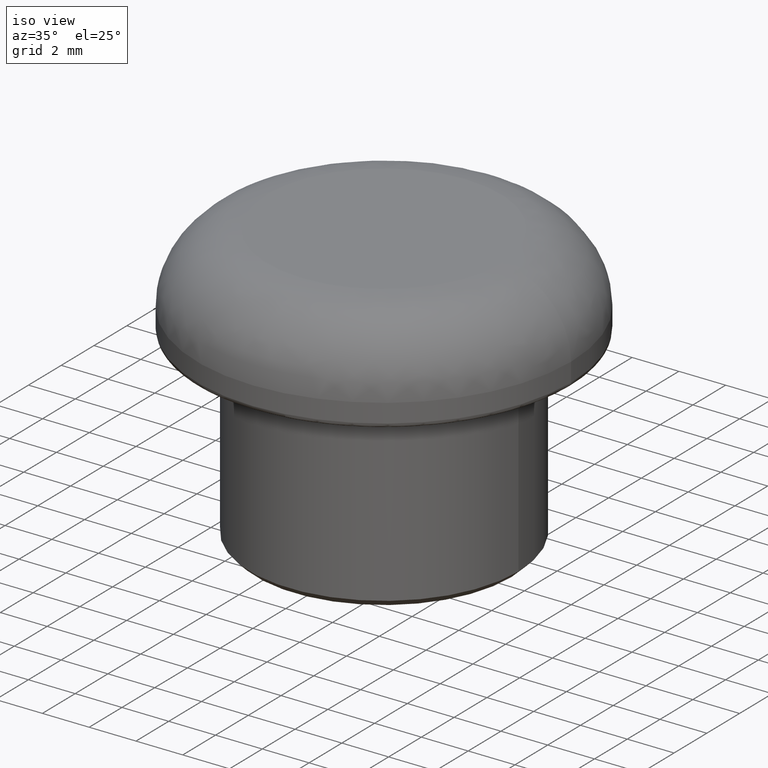
[diagram: clean part render]
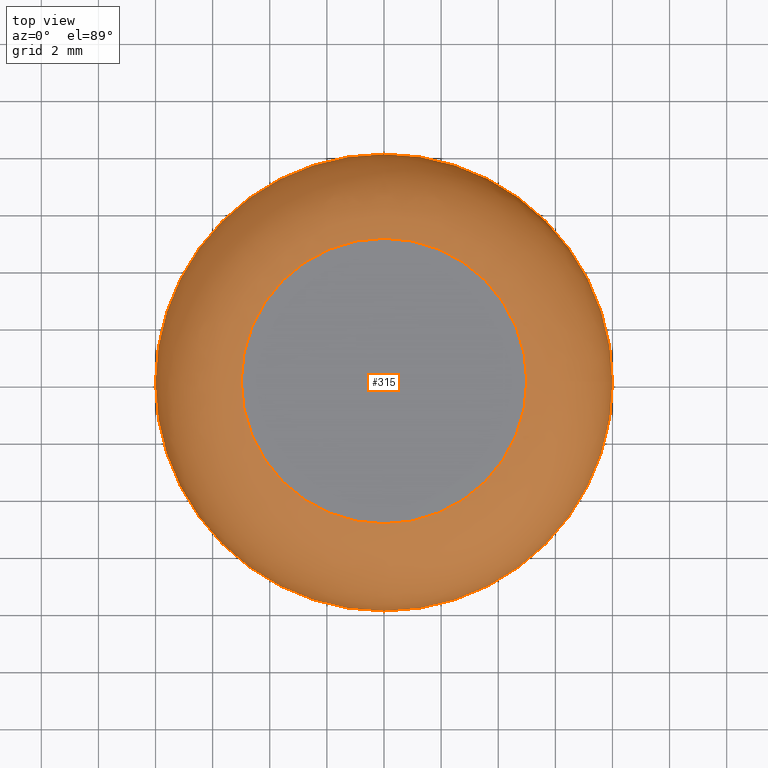
[diagram: tour spotlight — one face highlighted and labeled with its STEP entity id]
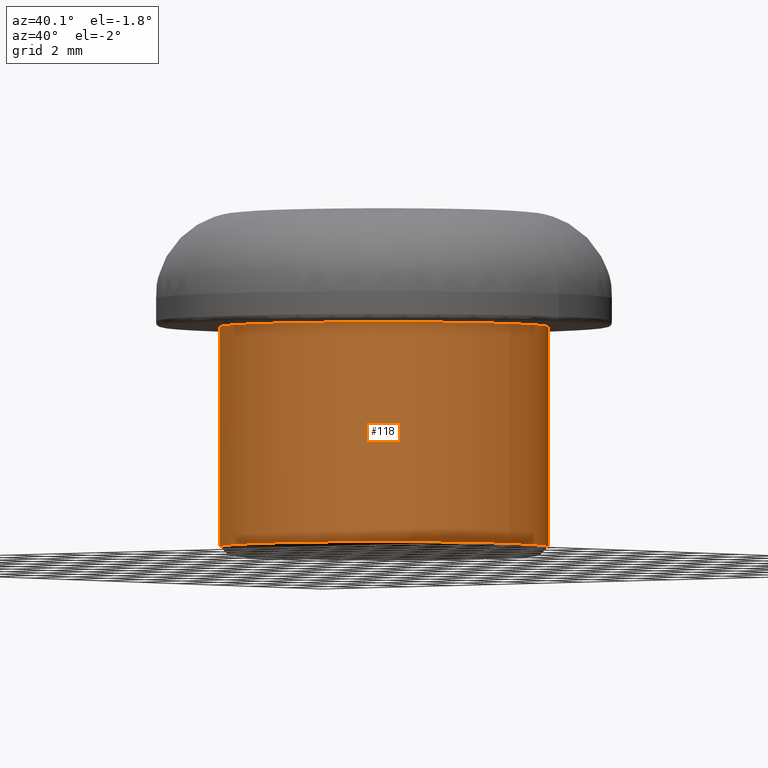
[diagram: tour spotlight — one face highlighted and labeled with its STEP entity id]
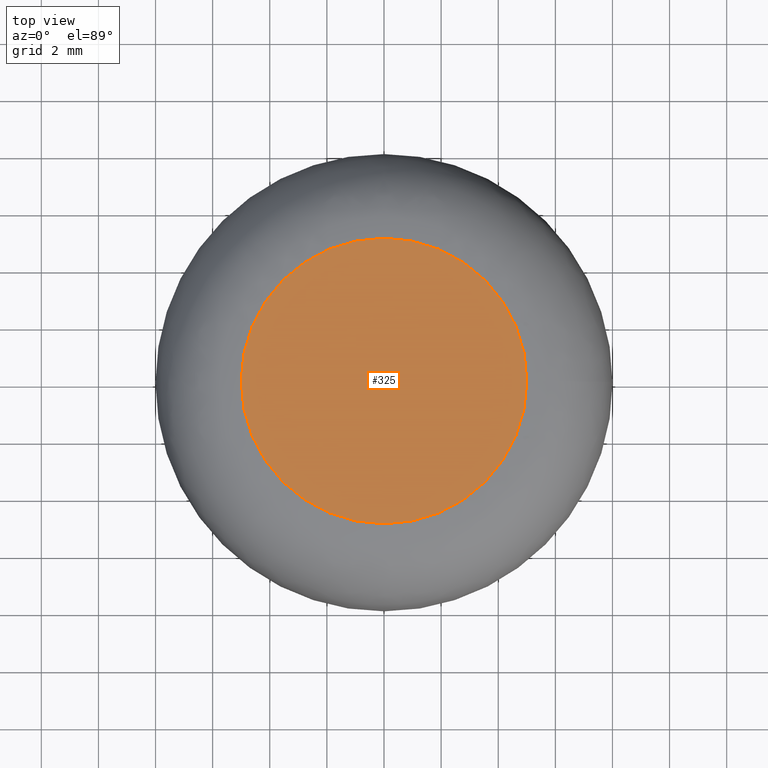
[diagram: tour spotlight — one face highlighted and labeled with its STEP entity id]
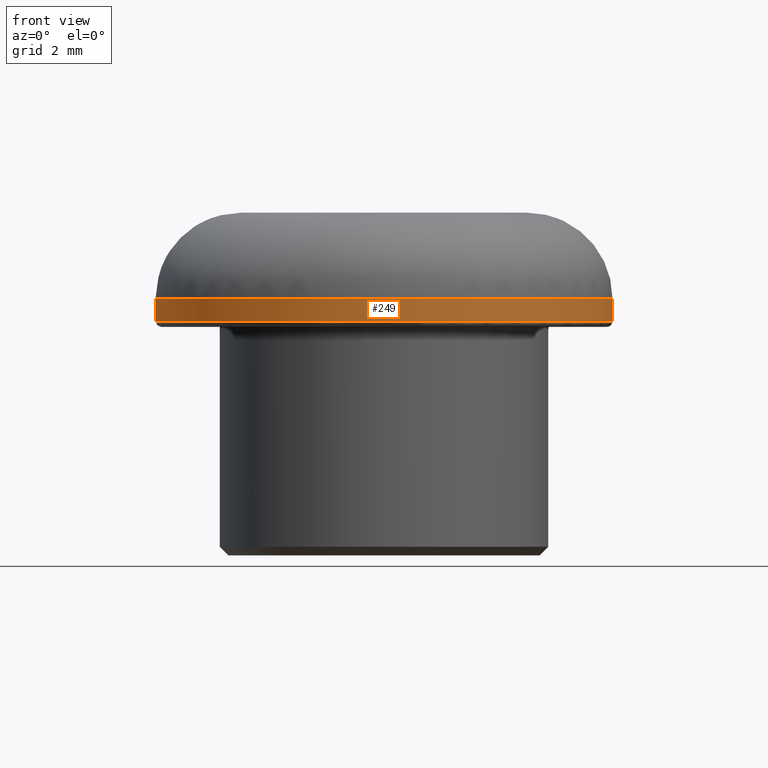
[diagram: tour spotlight — one face highlighted and labeled with its STEP entity id]
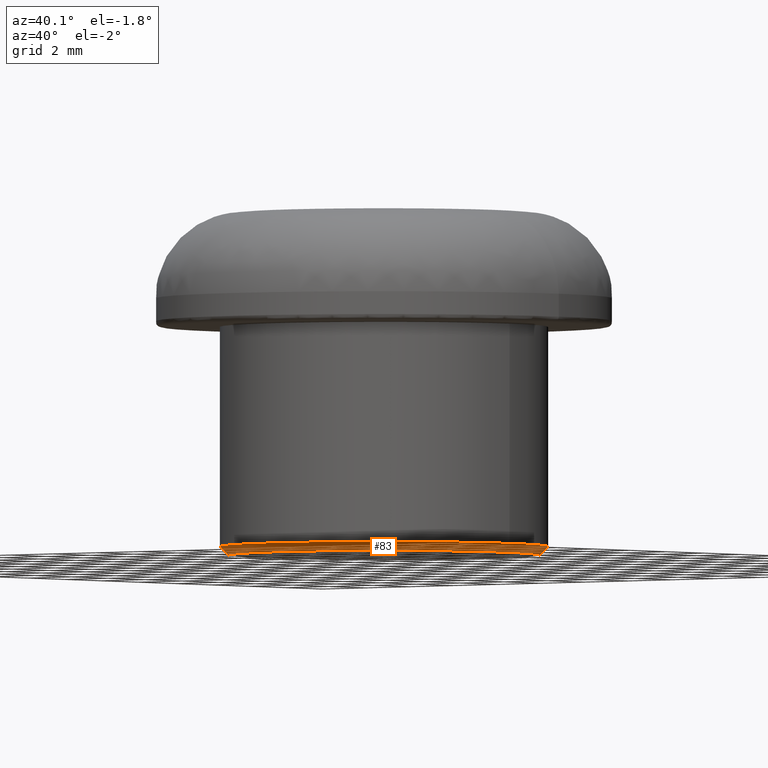
[diagram: tour spotlight — one face highlighted and labeled with its STEP entity id]
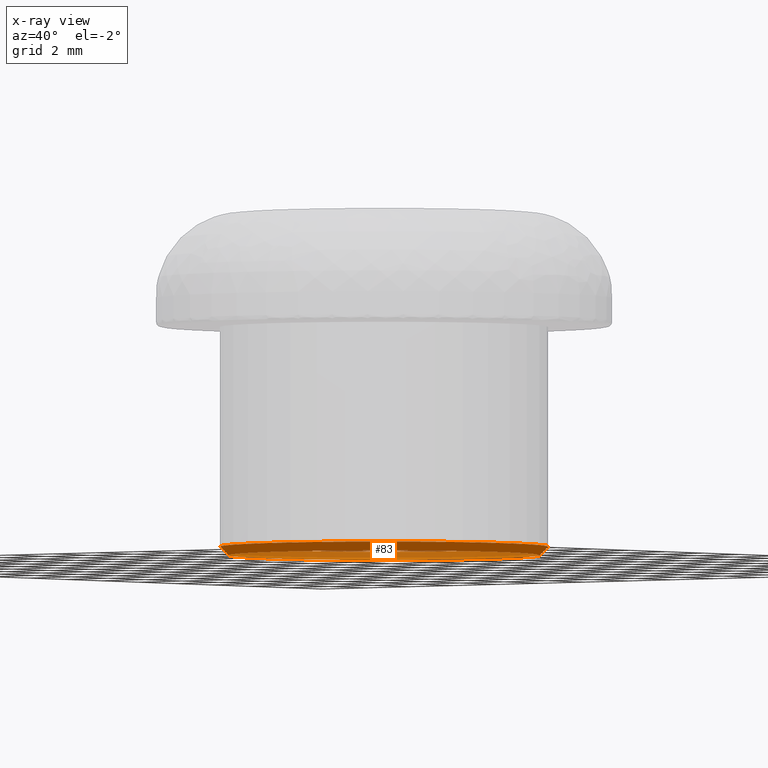
[diagram: x-ray of the same camera — body ghosted, this tour face saturated]
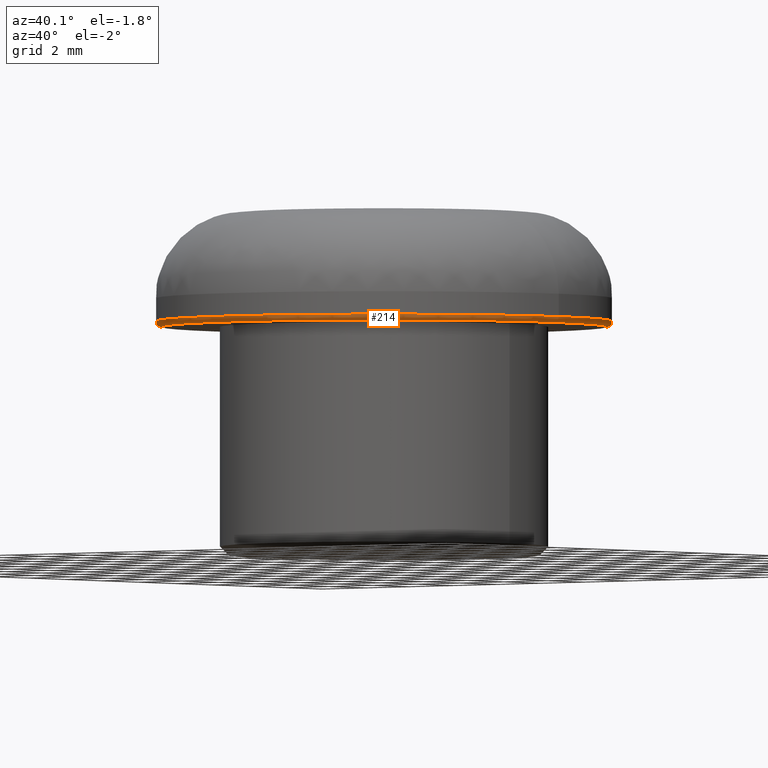
[diagram: tour spotlight — one face highlighted and labeled with its STEP entity id]
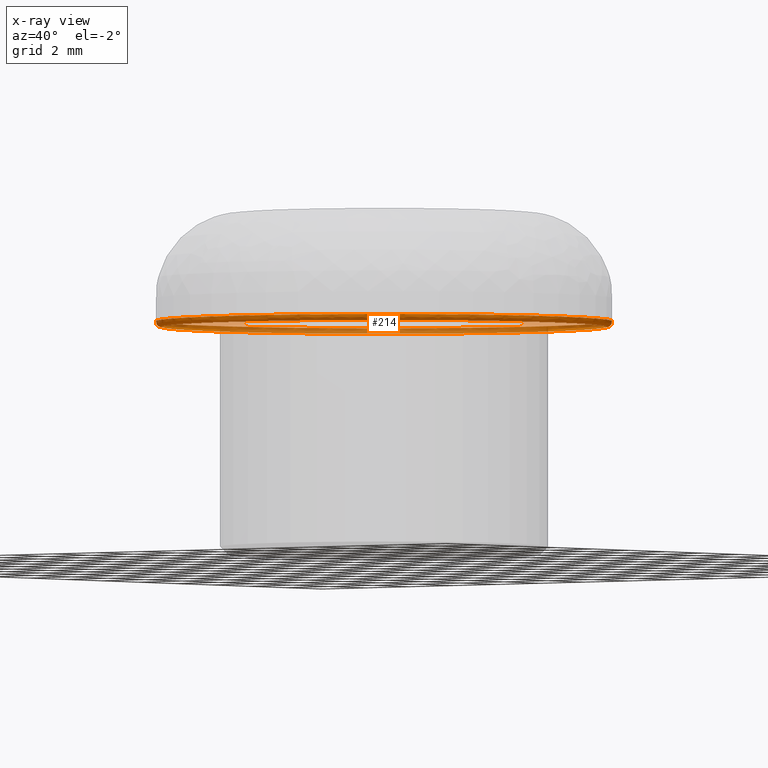
[diagram: x-ray of the same camera — body ghosted, this tour face saturated]
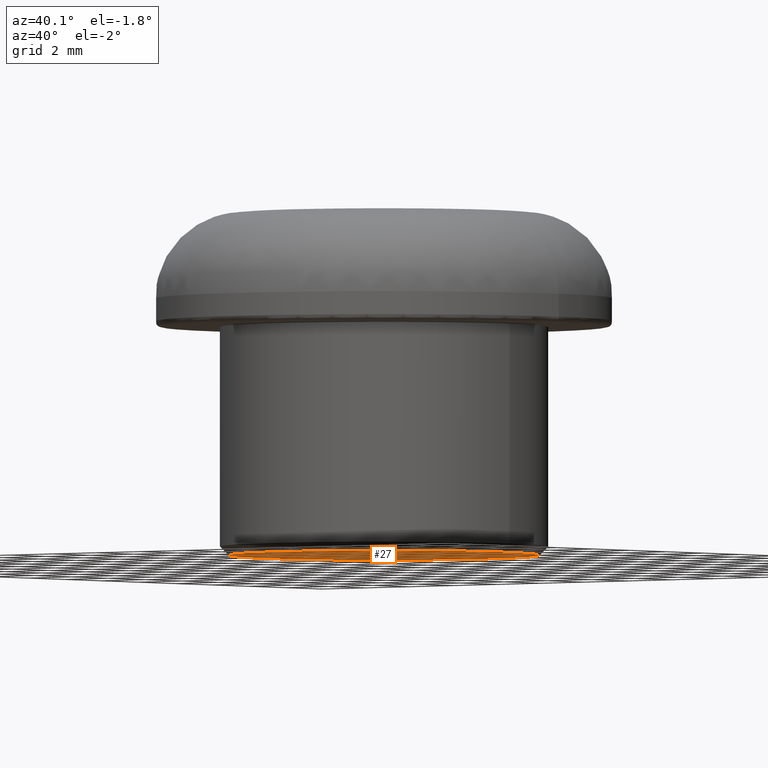
[diagram: tour spotlight — one face highlighted and labeled with its STEP entity id]
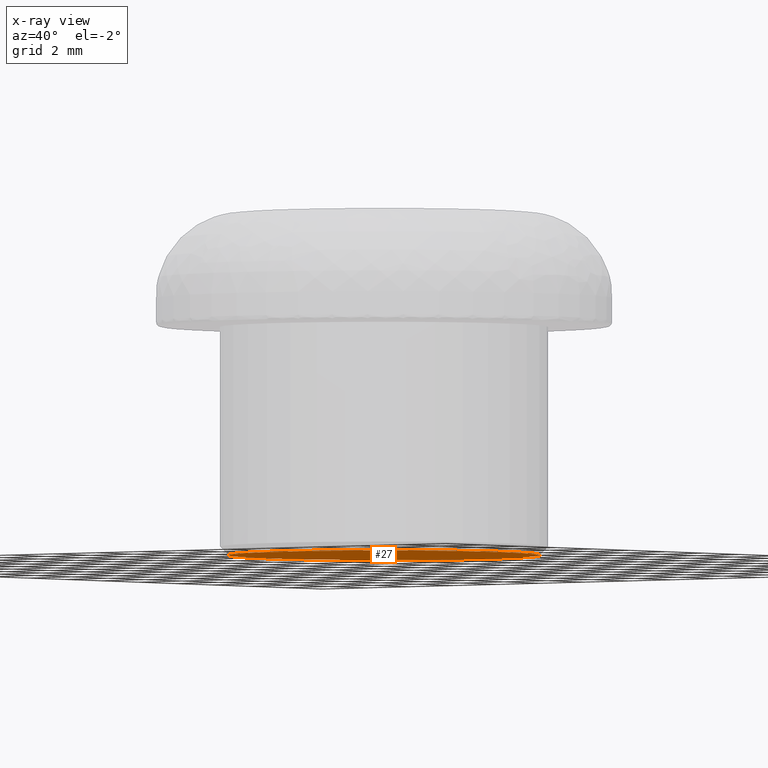
[diagram: x-ray of the same camera — body ghosted, this tour face saturated]
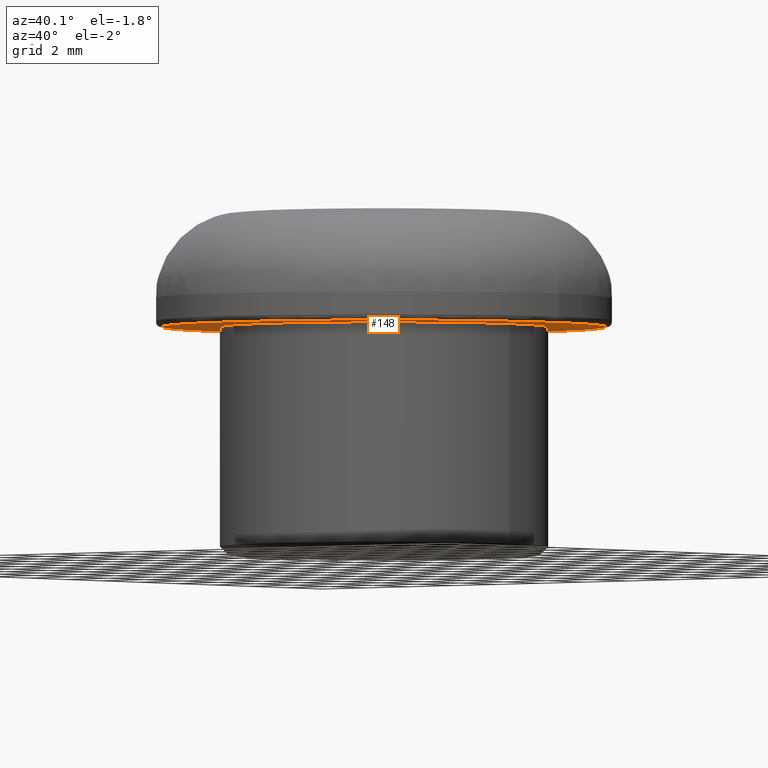
[diagram: tour spotlight — one face highlighted and labeled with its STEP entity id]
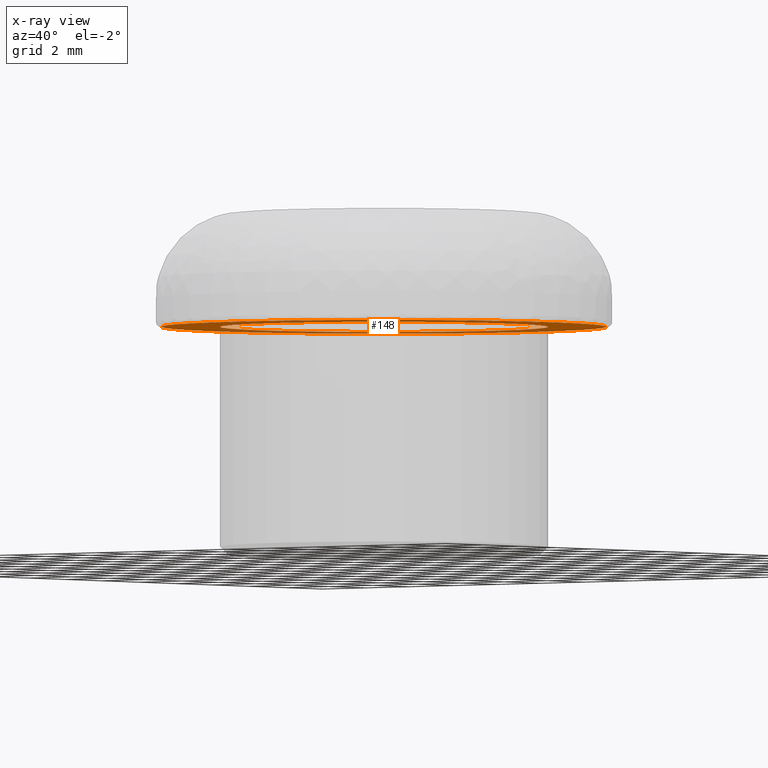
[diagram: x-ray of the same camera — body ghosted, this tour face saturated]
A machine part: a face-by-face anatomy tour. The part has 8 B-rep faces; the first image is the clean iso view, then the 8 largest visible faces are spotlighted one at a time (largest first), each with its STEP entity span.

Face 1 — top view, entity #315. In plain terms, the highlighted face is a freeform B-spline surface patch.
Definition (entity closure, byte-faithful):
#222=CARTESIAN_POINT('',(7.999999999968168,7.999999999968168,0.999999999995907));
#223=VERTEX_POINT('',#222);
#230=CARTESIAN_POINT('',(-7.999999999968168,7.999999999968168,0.999999999995907));
#231=VERTEX_POINT('',#230);
#232=CARTESIAN_POINT('',(0.0,7.999999999968168,0.999999999995907));
#233=DIRECTION('',(0.0,6.123234E-017,1.0));
#234=DIRECTION('',(1.0,0.0,0.0));
#235=AXIS2_PLACEMENT_3D('',#232,#233,#234);
#236=CIRCLE('',#235,7.999999999968168);
#237=EDGE_CURVE('',#231,#223,#236,.T.);
#239=CARTESIAN_POINT('',(0.0,7.999999999968168,0.999999999995907));
#240=DIRECTION('',(0.0,6.123234E-017,1.0));
#241=DIRECTION('',(1.0,0.0,0.0));
#242=AXIS2_PLACEMENT_3D('',#239,#240,#241);
#243=CIRCLE('',#242,7.999999999968168);
#244=EDGE_CURVE('',#223,#231,#243,.T.);
#250=CARTESIAN_POINT('',(7.999999999968168,7.999999999968168,0.999999999995907));
#251=CARTESIAN_POINT('',(7.999999999968168,15.999999999936335,0.999999999995907));
#252=CARTESIAN_POINT('',(-3.370874E-016,15.999999999936335,0.999999999995907));
#253=CARTESIAN_POINT('',(-7.999999999968168,15.999999999936335,0.999999999995907));
#254=CARTESIAN_POINT('',(-7.999999999968168,7.999999999968168,0.999999999995907));
#255=CARTESIAN_POINT('',(-7.999999999968168,0.0,0.999999999995908));
#256=CARTESIAN_POINT('',(3.370874E-016,0.0,0.999999999995908));
#257=CARTESIAN_POINT('',(7.999999999968168,0.0,0.999999999995908));
#258=CARTESIAN_POINT('',(7.999999999968168,7.999999999968168,0.999999999995907));
#259=CARTESIAN_POINT('',(7.999999999968168,7.999999999968168,3.999999999984084));
#260=CARTESIAN_POINT('',(7.999999999968168,15.999999999936335,3.999999999984083));
#261=CARTESIAN_POINT('',(-1.533903E-016,15.999999999936335,3.999999999984084));
#262=CARTESIAN_POINT('',(-7.999999999968168,15.999999999936335,3.999999999984083));
#263=CARTESIAN_POINT('',(-7.999999999968168,7.999999999968168,3.999999999984084));
#264=CARTESIAN_POINT('',(-7.999999999968168,0.0,3.999999999984084));
#265=CARTESIAN_POINT('',(1.533903E-016,0.0,3.999999999984084));
#266=CARTESIAN_POINT('',(7.999999999968168,0.0,3.999999999984084));
#267=CARTESIAN_POINT('',(7.999999999968168,7.999999999968168,3.999999999984084));
#268=CARTESIAN_POINT('',(4.999999999979992,7.999999999968168,3.999999999984084));
#269=CARTESIAN_POINT('',(4.999999999979992,12.999999999948157,3.999999999984084));
#270=CARTESIAN_POINT('',(-1.533903E-016,12.999999999948159,3.999999999984083));
#271=CARTESIAN_POINT('',(-4.999999999979992,12.999999999948157,3.999999999984084));
#272=CARTESIAN_POINT('',(-4.999999999979992,7.999999999968168,3.999999999984084));
#273=CARTESIAN_POINT('',(-4.999999999979992,2.999999999988176,3.999999999984084));
#274=CARTESIAN_POINT('',(1.533903E-016,2.999999999988176,3.999999999984084));
#275=CARTESIAN_POINT('',(4.999999999979992,2.999999999988176,3.999999999984084));
#276=CARTESIAN_POINT('',(4.999999999979992,7.999999999968168,3.999999999984084));
#284=(BOUNDED_SURFACE()B_SPLINE_SURFACE(2,2,((#250,#259,#268),(#251,#260,#269),(#252,#261,#270),(#253,#262,#271),(#254,#263,#272),(#255,#264,#273),(#256,#265,#274),(#257,#266,#275),(#258,#267,#276)),.UNSPECIFIED.,.T.,.F.,.U.)B_SPLINE_SURFACE_WITH_KNOTS((3,2,2,2,3),(3,3),(0.0,0.250000000000000,0.500000000000000,0.750000000000000,1.0),(0.0,1.0),.UNSPECIFIED.)GEOMETRIC_REPRESENTATION_ITEM()RATIONAL_B_SPLINE_SURFACE(((1.0,0.707106781186548,1.0),(0.707106781186548,0.500000000000000,0.707106781186548),(1.0,0.707106781186548,1.0),(0.707106781186548,0.500000000000000,0.707106781186548),(1.0,0.707106781186548,1.0),(0.707106781186548,0.500000000000000,0.707106781186548),(1.0,0.707106781186548,1.0),(0.707106781186548,0.500000000000000,0.707106781186548),(1.0,0.707106781186548,1.0)))REPRESENTATION_ITEM('')SURFACE());
#285=ORIENTED_EDGE('',*,*,#244,.T.);
#286=ORIENTED_EDGE('',*,*,#237,.T.);
#287=CARTESIAN_POINT('',(4.999999999979991,7.999999999968168,3.999999999984084));
#288=VERTEX_POINT('',#287);
#289=CARTESIAN_POINT('',(4.999999999979991,7.999999999968168,0.999999999995907));
#290=DIRECTION('',(0.0,-1.0,6.123234E-017));
#291=DIRECTION('',(1.0,0.0,0.0));
#292=AXIS2_PLACEMENT_3D('',#289,#290,#291);
#293=CIRCLE('',#292,2.999999999988177);
#294=EDGE_CURVE('',#223,#288,#293,.T.);
#295=ORIENTED_EDGE('',*,*,#294,.T.);
#296=CARTESIAN_POINT('',(-4.999999999979991,7.999999999968168,3.999999999984084));
#297=VERTEX_POINT('',#296);
#298=CARTESIAN_POINT('',(0.0,7.999999999968168,3.999999999984084));
#299=DIRECTION('',(0.0,6.123234E-017,1.0));
#300=DIRECTION('',(1.0,0.0,0.0));
#301=AXIS2_PLACEMENT_3D('',#298,#299,#300);
#302=CIRCLE('',#301,4.999999999979991);
#303=EDGE_CURVE('',#297,#288,#302,.T.);
#304=ORIENTED_EDGE('',*,*,#303,.F.);
#305=CARTESIAN_POINT('',(0.0,7.999999999968168,3.999999999984084));
#306=DIRECTION('',(0.0,6.123234E-017,1.0));
#307=DIRECTION('',(1.0,0.0,0.0));
#308=AXIS2_PLACEMENT_3D('',#305,#306,#307);
#309=CIRCLE('',#308,4.999999999979991);
#310=EDGE_CURVE('',#288,#297,#309,.T.);
#311=ORIENTED_EDGE('',*,*,#310,.F.);
#312=ORIENTED_EDGE('',*,*,#294,.F.);
#313=EDGE_LOOP('',(#285,#286,#295,#304,#311,#312));
#314=FACE_OUTER_BOUND('',#313,.T.);
#315=ADVANCED_FACE('',(#314),#284,.T.);

Face 2 — auxiliary view, entity #118. In plain terms, the highlighted cylindrical surface (bore or boss wall) has radius 5.75 mm, axis along (0, 0, 1).
Definition (entity closure, byte-faithful):
#56=CARTESIAN_POINT('',(5.750000000000000,7.999999999968167,-7.699999999969350));
#57=VERTEX_POINT('',#56);
#64=CARTESIAN_POINT('',(-5.750000000000000,7.999999999968167,-7.699999999969350));
#65=VERTEX_POINT('',#64);
#66=CARTESIAN_POINT('',(0.0,7.999999999968167,-7.699999999969350));
#67=DIRECTION('',(0.0,6.123234E-017,1.0));
#68=DIRECTION('',(1.0,0.0,0.0));
#69=AXIS2_PLACEMENT_3D('',#66,#67,#68);
#70=CIRCLE('',#69,5.750000000000000);
#71=EDGE_CURVE('',#65,#57,#70,.T.);
#73=CARTESIAN_POINT('',(0.0,7.999999999968167,-7.699999999969350));
#74=DIRECTION('',(0.0,6.123234E-017,1.0));
#75=DIRECTION('',(1.0,0.0,0.0));
#76=AXIS2_PLACEMENT_3D('',#73,#74,#75);
#77=CIRCLE('',#76,5.750000000000000);
#78=EDGE_CURVE('',#57,#65,#77,.T.);
#84=CARTESIAN_POINT('',(0.0,7.999999999968167,-7.699999999969350));
#85=DIRECTION('',(0.0,6.123234E-017,1.0));
#86=DIRECTION('',(1.0,0.0,0.0));
#87=AXIS2_PLACEMENT_3D('',#84,#85,#86);
#88=CYLINDRICAL_SURFACE('',#87,5.750000000000000);
#89=ORIENTED_EDGE('',*,*,#78,.T.);
#90=ORIENTED_EDGE('',*,*,#71,.T.);
#91=CARTESIAN_POINT('',(5.750000000000000,7.999999999968168,0.0));
#92=VERTEX_POINT('',#91);
#93=CARTESIAN_POINT('',(5.750000000000000,7.999999999968167,-7.699999999969350));
#94=DIRECTION('',(0.0,0.0,1.0));
#95=VECTOR('',#94,7.699999999969350);
#96=LINE('',#93,#95);
#97=EDGE_CURVE('',#57,#92,#96,.T.);
#98=ORIENTED_EDGE('',*,*,#97,.T.);
#99=CARTESIAN_POINT('',(-5.750000000000000,7.999999999968168,0.0));
#100=VERTEX_POINT('',#99);
#101=CARTESIAN_POINT('',(0.0,7.999999999968168,0.0));
#102=DIRECTION('',(0.0,6.123234E-017,1.0));
#103=DIRECTION('',(1.0,0.0,0.0));
#104=AXIS2_PLACEMENT_3D('',#101,#102,#103);
#105=CIRCLE('',#104,5.750000000000000);
#106=EDGE_CURVE('',#100,#92,#105,.T.);
#107=ORIENTED_EDGE('',*,*,#106,.F.);
#108=CARTESIAN_POINT('',(0.0,7.999999999968168,0.0));
#109=DIRECTION('',(0.0,6.123234E-017,1.0));
#110=DIRECTION('',(1.0,0.0,0.0));
#111=AXIS2_PLACEMENT_3D('',#108,#109,#110);
#112=CIRCLE('',#111,5.750000000000000);
#113=EDGE_CURVE('',#92,#100,#112,.T.);
#114=ORIENTED_EDGE('',*,*,#113,.F.);
#115=ORIENTED_EDGE('',*,*,#97,.F.);
#116=EDGE_LOOP('',(#89,#90,#98,#107,#114,#115));
#117=FACE_OUTER_BOUND('',#116,.T.);
#118=ADVANCED_FACE('',(#117),#88,.T.);

Face 3 — top view, entity #325. In plain terms, the highlighted planar face has unit normal (0, 0, 1).
Definition (entity closure, byte-faithful):
#287=CARTESIAN_POINT('',(4.999999999979991,7.999999999968168,3.999999999984084));
#288=VERTEX_POINT('',#287);
#296=CARTESIAN_POINT('',(-4.999999999979991,7.999999999968168,3.999999999984084));
#297=VERTEX_POINT('',#296);
#298=CARTESIAN_POINT('',(0.0,7.999999999968168,3.999999999984084));
#299=DIRECTION('',(0.0,6.123234E-017,1.0));
#300=DIRECTION('',(1.0,0.0,0.0));
#301=AXIS2_PLACEMENT_3D('',#298,#299,#300);
#302=CIRCLE('',#301,4.999999999979991);
#303=EDGE_CURVE('',#297,#288,#302,.T.);
#305=CARTESIAN_POINT('',(0.0,7.999999999968168,3.999999999984084));
#306=DIRECTION('',(0.0,6.123234E-017,1.0));
#307=DIRECTION('',(1.0,0.0,0.0));
#308=AXIS2_PLACEMENT_3D('',#305,#306,#307);
#309=CIRCLE('',#308,4.999999999979991);
#310=EDGE_CURVE('',#288,#297,#309,.T.);
#316=CARTESIAN_POINT('',(9.999999999959982,-1.999999999991815,3.999999999984084));
#317=DIRECTION('',(0.0,0.0,1.0));
#318=DIRECTION('',(0.0,1.0,0.0));
#319=AXIS2_PLACEMENT_3D('',#316,#317,#318);
#320=PLANE('',#319);
#321=ORIENTED_EDGE('',*,*,#310,.T.);
#322=ORIENTED_EDGE('',*,*,#303,.T.);
#323=EDGE_LOOP('',(#321,#322));
#324=FACE_OUTER_BOUND('',#323,.T.);
#325=ADVANCED_FACE('',(#324),#320,.T.);

Face 4 — front view, entity #249. In plain terms, the highlighted cylindrical surface (bore or boss wall) has radius 8 mm, axis along (0, 0, 1).
Definition (entity closure, byte-faithful):
#186=CARTESIAN_POINT('',(7.999999999968168,7.999999999968168,0.199999999998909));
#187=VERTEX_POINT('',#186);
#195=CARTESIAN_POINT('',(-7.999999999968168,7.999999999968168,0.199999999998909));
#196=VERTEX_POINT('',#195);
#197=CARTESIAN_POINT('',(0.0,7.999999999968168,0.199999999998909));
#198=DIRECTION('',(0.0,6.123234E-017,1.0));
#199=DIRECTION('',(1.0,0.0,0.0));
#200=AXIS2_PLACEMENT_3D('',#197,#198,#199);
#201=CIRCLE('',#200,7.999999999968168);
#202=EDGE_CURVE('',#196,#187,#201,.T.);
#204=CARTESIAN_POINT('',(0.0,7.999999999968168,0.199999999998909));
#205=DIRECTION('',(0.0,6.123234E-017,1.0));
#206=DIRECTION('',(1.0,0.0,0.0));
#207=AXIS2_PLACEMENT_3D('',#204,#205,#206);
#208=CIRCLE('',#207,7.999999999968168);
#209=EDGE_CURVE('',#187,#196,#208,.T.);
#215=CARTESIAN_POINT('',(0.0,7.999999999968168,0.199999999998909));
#216=DIRECTION('',(0.0,6.123234E-017,1.0));
#217=DIRECTION('',(1.0,0.0,0.0));
#218=AXIS2_PLACEMENT_3D('',#215,#216,#217);
#219=CYLINDRICAL_SURFACE('',#218,7.999999999968168);
#220=ORIENTED_EDGE('',*,*,#209,.T.);
#221=ORIENTED_EDGE('',*,*,#202,.T.);
#222=CARTESIAN_POINT('',(7.999999999968168,7.999999999968168,0.999999999995907));
#223=VERTEX_POINT('',#222);
#224=CARTESIAN_POINT('',(7.999999999968168,7.999999999968168,0.199999999998909));
#225=DIRECTION('',(0.0,0.0,1.0));
#226=VECTOR('',#225,0.799999999996999);
#227=LINE('',#224,#226);
#228=EDGE_CURVE('',#187,#223,#227,.T.);
#229=ORIENTED_EDGE('',*,*,#228,.T.);
#230=CARTESIAN_POINT('',(-7.999999999968168,7.999999999968168,0.999999999995907));
#231=VERTEX_POINT('',#230);
#232=CARTESIAN_POINT('',(0.0,7.999999999968168,0.999999999995907));
#233=DIRECTION('',(0.0,6.123234E-017,1.0));
#234=DIRECTION('',(1.0,0.0,0.0));
#235=AXIS2_PLACEMENT_3D('',#232,#233,#234);
#236=CIRCLE('',#235,7.999999999968168);
#237=EDGE_CURVE('',#231,#223,#236,.T.);
#238=ORIENTED_EDGE('',*,*,#237,.F.);
#239=CARTESIAN_POINT('',(0.0,7.999999999968168,0.999999999995907));
#240=DIRECTION('',(0.0,6.123234E-017,1.0));
#241=DIRECTION('',(1.0,0.0,0.0));
#242=AXIS2_PLACEMENT_3D('',#239,#240,#241);
#243=CIRCLE('',#242,7.999999999968168);
#244=EDGE_CURVE('',#223,#231,#243,.T.);
#245=ORIENTED_EDGE('',*,*,#244,.F.);
#246=ORIENTED_EDGE('',*,*,#228,.F.);
#247=EDGE_LOOP('',(#220,#221,#229,#238,#245,#246));
#248=FACE_OUTER_BOUND('',#247,.T.);
#249=ADVANCED_FACE('',(#248),#219,.T.);

Face 5 — auxiliary view, entity #83. An x-ray twin of the same camera follows (body ghosted, this face saturated) — the face is partly hidden behind the body. In plain terms, the highlighted face is a freeform B-spline surface patch.
Definition (entity closure, byte-faithful):
#7=CARTESIAN_POINT('',(-5.450000000001637,7.999999999968167,-7.999999999968168));
#8=VERTEX_POINT('',#7);
#9=CARTESIAN_POINT('',(5.450000000001637,7.999999999968167,-7.999999999968168));
#10=VERTEX_POINT('',#9);
#11=CARTESIAN_POINT('',(0.0,7.999999999968167,-7.999999999968168));
#12=DIRECTION('',(0.0,6.123234E-017,1.0));
#13=DIRECTION('',(1.0,0.0,0.0));
#14=AXIS2_PLACEMENT_3D('',#11,#12,#13);
#15=CIRCLE('',#14,5.450000000001637);
#16=EDGE_CURVE('',#8,#10,#15,.T.);
#18=CARTESIAN_POINT('',(0.0,7.999999999968167,-7.999999999968168));
#19=DIRECTION('',(0.0,6.123234E-017,1.0));
#20=DIRECTION('',(1.0,0.0,0.0));
#21=AXIS2_PLACEMENT_3D('',#18,#19,#20);
#22=CIRCLE('',#21,5.450000000001637);
#23=EDGE_CURVE('',#10,#8,#22,.T.);
#28=CARTESIAN_POINT('',(5.450000000001637,7.999999999968167,-7.999999999968168));
#29=CARTESIAN_POINT('',(5.450000000001637,13.449999999969805,-7.999999999968168));
#30=CARTESIAN_POINT('',(0.0,13.449999999969805,-7.999999999968168));
#31=CARTESIAN_POINT('',(-5.450000000001637,13.449999999969805,-7.999999999968168));
#32=CARTESIAN_POINT('',(-5.450000000001637,7.999999999968167,-7.999999999968168));
#33=CARTESIAN_POINT('',(-5.450000000001637,2.549999999966530,-7.999999999968168));
#34=CARTESIAN_POINT('',(0.0,2.549999999966530,-7.999999999968168));
#35=CARTESIAN_POINT('',(5.450000000001637,2.549999999966530,-7.999999999968168));
#36=CARTESIAN_POINT('',(5.450000000001637,7.999999999968167,-7.999999999968168));
#37=CARTESIAN_POINT('',(5.750000000000000,7.999999999968167,-7.699999999969350));
#38=CARTESIAN_POINT('',(5.750000000000000,13.749999999968168,-7.699999999969350));
#39=CARTESIAN_POINT('',(1.836970E-017,13.749999999968168,-7.699999999969350));
#40=CARTESIAN_POINT('',(-5.750000000000000,13.749999999968168,-7.699999999969350));
#41=CARTESIAN_POINT('',(-5.750000000000000,7.999999999968167,-7.699999999969350));
#42=CARTESIAN_POINT('',(-5.750000000000000,2.249999999968167,-7.699999999969350));
#43=CARTESIAN_POINT('',(-1.836970E-017,2.249999999968167,-7.699999999969350));
#44=CARTESIAN_POINT('',(5.750000000000000,2.249999999968167,-7.699999999969350));
#45=CARTESIAN_POINT('',(5.750000000000000,7.999999999968167,-7.699999999969350));
#53=(BOUNDED_SURFACE()B_SPLINE_SURFACE(2,1,((#28,#37),(#29,#38),(#30,#39),(#31,#40),(#32,#41),(#33,#42),(#34,#43),(#35,#44),(#36,#45)),.UNSPECIFIED.,.T.,.F.,.U.)B_SPLINE_SURFACE_WITH_KNOTS((3,2,2,2,3),(2,2),(0.0,0.250000000000000,0.500000000000000,0.750000000000000,1.0),(-0.424264068709935,0.0),.UNSPECIFIED.)GEOMETRIC_REPRESENTATION_ITEM()RATIONAL_B_SPLINE_SURFACE(((1.0,1.0),(0.707106781186548,0.707106781186548),(1.0,1.0),(0.707106781186548,0.707106781186548),(1.0,1.0),(0.707106781186548,0.707106781186548),(1.0,1.0),(0.707106781186548,0.707106781186548),(1.0,1.0)))REPRESENTATION_ITEM('')SURFACE());
#54=ORIENTED_EDGE('',*,*,#23,.T.);
#55=ORIENTED_EDGE('',*,*,#16,.T.);
#56=CARTESIAN_POINT('',(5.750000000000000,7.999999999968167,-7.699999999969350));
#57=VERTEX_POINT('',#56);
#58=CARTESIAN_POINT('',(5.450000000001637,7.999999999968167,-7.999999999968168));
#59=DIRECTION('',(0.707106781186012,0.0,0.707106781187083));
#60=VECTOR('',#59,0.424264068709935);
#61=LINE('',#58,#60);
#62=EDGE_CURVE('',#10,#57,#61,.T.);
#63=ORIENTED_EDGE('',*,*,#62,.T.);
#64=CARTESIAN_POINT('',(-5.750000000000000,7.999999999968167,-7.699999999969350));
#65=VERTEX_POINT('',#64);
#66=CARTESIAN_POINT('',(0.0,7.999999999968167,-7.699999999969350));
#67=DIRECTION('',(0.0,6.123234E-017,1.0));
#68=DIRECTION('',(1.0,0.0,0.0));
#69=AXIS2_PLACEMENT_3D('',#66,#67,#68);
#70=CIRCLE('',#69,5.750000000000000);
#71=EDGE_CURVE('',#65,#57,#70,.T.);
#72=ORIENTED_EDGE('',*,*,#71,.F.);
#73=CARTESIAN_POINT('',(0.0,7.999999999968167,-7.699999999969350));
#74=DIRECTION('',(0.0,6.123234E-017,1.0));
#75=DIRECTION('',(1.0,0.0,0.0));
#76=AXIS2_PLACEMENT_3D('',#73,#74,#75);
#77=CIRCLE('',#76,5.750000000000000);
#78=EDGE_CURVE('',#57,#65,#77,.T.);
#79=ORIENTED_EDGE('',*,*,#78,.F.);
#80=ORIENTED_EDGE('',*,*,#62,.F.);
#81=EDGE_LOOP('',(#54,#55,#63,#72,#79,#80));
#82=FACE_OUTER_BOUND('',#81,.T.);
#83=ADVANCED_FACE('',(#82),#53,.T.);

Face 6 — auxiliary view, entity #214. An x-ray twin of the same camera follows (body ghosted, this face saturated) — the face is partly hidden behind the body. In plain terms, the highlighted face is a freeform B-spline surface patch.
Definition (entity closure, byte-faithful):
#124=CARTESIAN_POINT('',(-7.799999999969259,7.999999999968168,0.0));
#125=VERTEX_POINT('',#124);
#126=CARTESIAN_POINT('',(7.799999999969259,7.999999999968168,0.0));
#127=VERTEX_POINT('',#126);
#128=CARTESIAN_POINT('',(0.0,7.999999999968168,0.0));
#129=DIRECTION('',(0.0,6.123234E-017,1.0));
#130=DIRECTION('',(1.0,0.0,0.0));
#131=AXIS2_PLACEMENT_3D('',#128,#129,#130);
#132=CIRCLE('',#131,7.799999999969259);
#133=EDGE_CURVE('',#125,#127,#132,.T.);
#135=CARTESIAN_POINT('',(0.0,7.999999999968168,0.0));
#136=DIRECTION('',(0.0,6.123234E-017,1.0));
#137=DIRECTION('',(1.0,0.0,0.0));
#138=AXIS2_PLACEMENT_3D('',#135,#136,#137);
#139=CIRCLE('',#138,7.799999999969259);
#140=EDGE_CURVE('',#127,#125,#139,.T.);
#149=CARTESIAN_POINT('',(7.799999999969259,7.999999999968168,0.0));
#150=CARTESIAN_POINT('',(7.799999999969259,15.799999999937429,-4.776123E-016));
#151=CARTESIAN_POINT('',(-3.983197E-016,15.799999999937427,-4.776123E-016));
#152=CARTESIAN_POINT('',(-7.799999999969259,15.799999999937429,-4.776123E-016));
#153=CARTESIAN_POINT('',(-7.799999999969259,7.999999999968168,0.0));
#154=CARTESIAN_POINT('',(-7.799999999969259,0.199999999998909,4.776123E-016));
#155=CARTESIAN_POINT('',(3.983197E-016,0.199999999998909,4.776123E-016));
#156=CARTESIAN_POINT('',(7.799999999969259,0.199999999998909,4.776123E-016));
#157=CARTESIAN_POINT('',(7.799999999969259,7.999999999968168,0.0));
#158=CARTESIAN_POINT('',(7.999999999968168,7.999999999968168,0.0));
#159=CARTESIAN_POINT('',(7.999999999968168,15.999999999936335,-4.898587E-016));
#160=CARTESIAN_POINT('',(-3.983197E-016,15.999999999936335,-4.898587E-016));
#161=CARTESIAN_POINT('',(-7.999999999968168,15.999999999936335,-4.898587E-016));
#162=CARTESIAN_POINT('',(-7.999999999968168,7.999999999968168,0.0));
#163=CARTESIAN_POINT('',(-7.999999999968168,0.0,4.898587E-016));
#164=CARTESIAN_POINT('',(3.983197E-016,0.0,4.898587E-016));
#165=CARTESIAN_POINT('',(7.999999999968168,0.0,4.898587E-016));
#166=CARTESIAN_POINT('',(7.999999999968168,7.999999999968168,0.0));
#167=CARTESIAN_POINT('',(7.999999999968168,7.999999999968168,0.199999999998909));
#168=CARTESIAN_POINT('',(7.999999999968168,15.999999999936335,0.199999999998908));
#169=CARTESIAN_POINT('',(-3.860732E-016,15.999999999936335,0.199999999998908));
#170=CARTESIAN_POINT('',(-7.999999999968168,15.999999999936335,0.199999999998908));
#171=CARTESIAN_POINT('',(-7.999999999968168,7.999999999968168,0.199999999998909));
#172=CARTESIAN_POINT('',(-7.999999999968168,0.0,0.199999999998909));
#173=CARTESIAN_POINT('',(3.860732E-016,0.0,0.199999999998909));
#174=CARTESIAN_POINT('',(7.999999999968168,0.0,0.199999999998909));
#175=CARTESIAN_POINT('',(7.999999999968168,7.999999999968168,0.199999999998909));
#183=(BOUNDED_SURFACE()B_SPLINE_SURFACE(2,2,((#149,#158,#167),(#150,#159,#168),(#151,#160,#169),(#152,#161,#170),(#153,#162,#171),(#154,#163,#172),(#155,#164,#173),(#156,#165,#174),(#157,#166,#175)),.UNSPECIFIED.,.T.,.F.,.U.)B_SPLINE_SURFACE_WITH_KNOTS((3,2,2,2,3),(3,3),(0.0,0.250000000000000,0.500000000000000,0.750000000000000,1.0),(0.0,1.0),.UNSPECIFIED.)GEOMETRIC_REPRESENTATION_ITEM()RATIONAL_B_SPLINE_SURFACE(((1.0,0.707106781186548,1.0),(0.707106781186548,0.500000000000000,0.707106781186548),(1.0,0.707106781186548,1.0),(0.707106781186548,0.500000000000000,0.707106781186548),(1.0,0.707106781186548,1.0),(0.707106781186548,0.500000000000000,0.707106781186548),(1.0,0.707106781186548,1.0),(0.707106781186548,0.500000000000000,0.707106781186548),(1.0,0.707106781186548,1.0)))REPRESENTATION_ITEM('')SURFACE());
#184=ORIENTED_EDGE('',*,*,#140,.T.);
#185=ORIENTED_EDGE('',*,*,#133,.T.);
#186=CARTESIAN_POINT('',(7.999999999968168,7.999999999968168,0.199999999998909));
#187=VERTEX_POINT('',#186);
#188=CARTESIAN_POINT('',(7.799999999969259,7.999999999968168,0.199999999998909));
#189=DIRECTION('',(0.0,-1.0,6.123234E-017));
#190=DIRECTION('',(1.0,0.0,0.0));
#191=AXIS2_PLACEMENT_3D('',#188,#189,#190);
#192=CIRCLE('',#191,0.199999999998909);
#193=EDGE_CURVE('',#127,#187,#192,.T.);
#194=ORIENTED_EDGE('',*,*,#193,.T.);
#195=CARTESIAN_POINT('',(-7.999999999968168,7.999999999968168,0.199999999998909));
#196=VERTEX_POINT('',#195);
#197=CARTESIAN_POINT('',(0.0,7.999999999968168,0.199999999998909));
#198=DIRECTION('',(0.0,6.123234E-017,1.0));
#199=DIRECTION('',(1.0,0.0,0.0));
#200=AXIS2_PLACEMENT_3D('',#197,#198,#199);
#201=CIRCLE('',#200,7.999999999968168);
#202=EDGE_CURVE('',#196,#187,#201,.T.);
#203=ORIENTED_EDGE('',*,*,#202,.F.);
#204=CARTESIAN_POINT('',(0.0,7.999999999968168,0.199999999998909));
#205=DIRECTION('',(0.0,6.123234E-017,1.0));
#206=DIRECTION('',(1.0,0.0,0.0));
#207=AXIS2_PLACEMENT_3D('',#204,#205,#206);
#208=CIRCLE('',#207,7.999999999968168);
#209=EDGE_CURVE('',#187,#196,#208,.T.);
#210=ORIENTED_EDGE('',*,*,#209,.F.);
#211=ORIENTED_EDGE('',*,*,#193,.F.);
#212=EDGE_LOOP('',(#184,#185,#194,#203,#210,#211));
#213=FACE_OUTER_BOUND('',#212,.T.);
#214=ADVANCED_FACE('',(#213),#183,.T.);

Face 7 — auxiliary view, entity #27. An x-ray twin of the same camera follows (body ghosted, this face saturated) — the face is partly hidden behind the body. In plain terms, the highlighted planar face has unit normal (0, 0, -1).
Definition (entity closure, byte-faithful):
#2=CARTESIAN_POINT('',(-10.900000000003274,-2.900000000035107,-7.999999999968167));
#3=DIRECTION('',(0.0,0.0,-1.0));
#4=DIRECTION('',(0.0,1.0,0.0));
#5=AXIS2_PLACEMENT_3D('',#2,#3,#4);
#6=PLANE('',#5);
#7=CARTESIAN_POINT('',(-5.450000000001637,7.999999999968167,-7.999999999968168));
#8=VERTEX_POINT('',#7);
#9=CARTESIAN_POINT('',(5.450000000001637,7.999999999968167,-7.999999999968168));
#10=VERTEX_POINT('',#9);
#11=CARTESIAN_POINT('',(0.0,7.999999999968167,-7.999999999968168));
#12=DIRECTION('',(0.0,6.123234E-017,1.0));
#13=DIRECTION('',(1.0,0.0,0.0));
#14=AXIS2_PLACEMENT_3D('',#11,#12,#13);
#15=CIRCLE('',#14,5.450000000001637);
#16=EDGE_CURVE('',#8,#10,#15,.T.);
#17=ORIENTED_EDGE('',*,*,#16,.F.);
#18=CARTESIAN_POINT('',(0.0,7.999999999968167,-7.999999999968168));
#19=DIRECTION('',(0.0,6.123234E-017,1.0));
#20=DIRECTION('',(1.0,0.0,0.0));
#21=AXIS2_PLACEMENT_3D('',#18,#19,#20);
#22=CIRCLE('',#21,5.450000000001637);
#23=EDGE_CURVE('',#10,#8,#22,.T.);
#24=ORIENTED_EDGE('',*,*,#23,.F.);
#25=EDGE_LOOP('',(#17,#24));
#26=FACE_OUTER_BOUND('',#25,.T.);
#27=ADVANCED_FACE('',(#26),#6,.T.);

Face 8 — auxiliary view, entity #148. An x-ray twin of the same camera follows (body ghosted, this face saturated) — the face is partly hidden behind the body. In plain terms, the highlighted planar face has unit normal (0, 0, -1).
Definition (entity closure, byte-faithful):
#91=CARTESIAN_POINT('',(5.750000000000000,7.999999999968168,0.0));
#92=VERTEX_POINT('',#91);
#99=CARTESIAN_POINT('',(-5.750000000000000,7.999999999968168,0.0));
#100=VERTEX_POINT('',#99);
#101=CARTESIAN_POINT('',(0.0,7.999999999968168,0.0));
#102=DIRECTION('',(0.0,6.123234E-017,1.0));
#103=DIRECTION('',(1.0,0.0,0.0));
#104=AXIS2_PLACEMENT_3D('',#101,#102,#103);
#105=CIRCLE('',#104,5.750000000000000);
#106=EDGE_CURVE('',#100,#92,#105,.T.);
#108=CARTESIAN_POINT('',(0.0,7.999999999968168,0.0));
#109=DIRECTION('',(0.0,6.123234E-017,1.0));
#110=DIRECTION('',(1.0,0.0,0.0));
#111=AXIS2_PLACEMENT_3D('',#108,#109,#110);
#112=CIRCLE('',#111,5.750000000000000);
#113=EDGE_CURVE('',#92,#100,#112,.T.);
#119=CARTESIAN_POINT('',(-15.599999999938518,-7.599999999970351,8.881784E-016));
#120=DIRECTION('',(0.0,0.0,-1.0));
#121=DIRECTION('',(0.0,1.0,0.0));
#122=AXIS2_PLACEMENT_3D('',#119,#120,#121);
#123=PLANE('',#122);
#124=CARTESIAN_POINT('',(-7.799999999969259,7.999999999968168,0.0));
#125=VERTEX_POINT('',#124);
#126=CARTESIAN_POINT('',(7.799999999969259,7.999999999968168,0.0));
#127=VERTEX_POINT('',#126);
#128=CARTESIAN_POINT('',(0.0,7.999999999968168,0.0));
#129=DIRECTION('',(0.0,6.123234E-017,1.0));
#130=DIRECTION('',(1.0,0.0,0.0));
#131=AXIS2_PLACEMENT_3D('',#128,#129,#130);
#132=CIRCLE('',#131,7.799999999969259);
#133=EDGE_CURVE('',#125,#127,#132,.T.);
#134=ORIENTED_EDGE('',*,*,#133,.F.);
#135=CARTESIAN_POINT('',(0.0,7.999999999968168,0.0));
#136=DIRECTION('',(0.0,6.123234E-017,1.0));
#137=DIRECTION('',(1.0,0.0,0.0));
#138=AXIS2_PLACEMENT_3D('',#135,#136,#137);
#139=CIRCLE('',#138,7.799999999969259);
#140=EDGE_CURVE('',#127,#125,#139,.T.);
#141=ORIENTED_EDGE('',*,*,#140,.F.);
#142=EDGE_LOOP('',(#134,#141));
#143=FACE_OUTER_BOUND('',#142,.T.);
#144=ORIENTED_EDGE('',*,*,#113,.T.);
#145=ORIENTED_EDGE('',*,*,#106,.T.);
#146=EDGE_LOOP('',(#144,#145));
#147=FACE_BOUND('',#146,.T.);
#148=ADVANCED_FACE('',(#143,#147),#123,.T.);